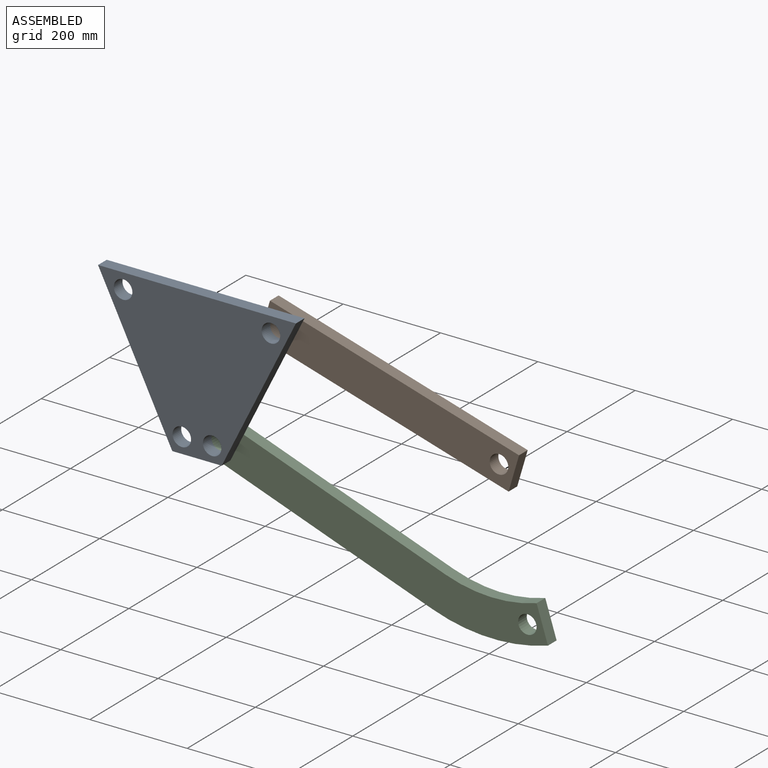
[diagram: assembled view]
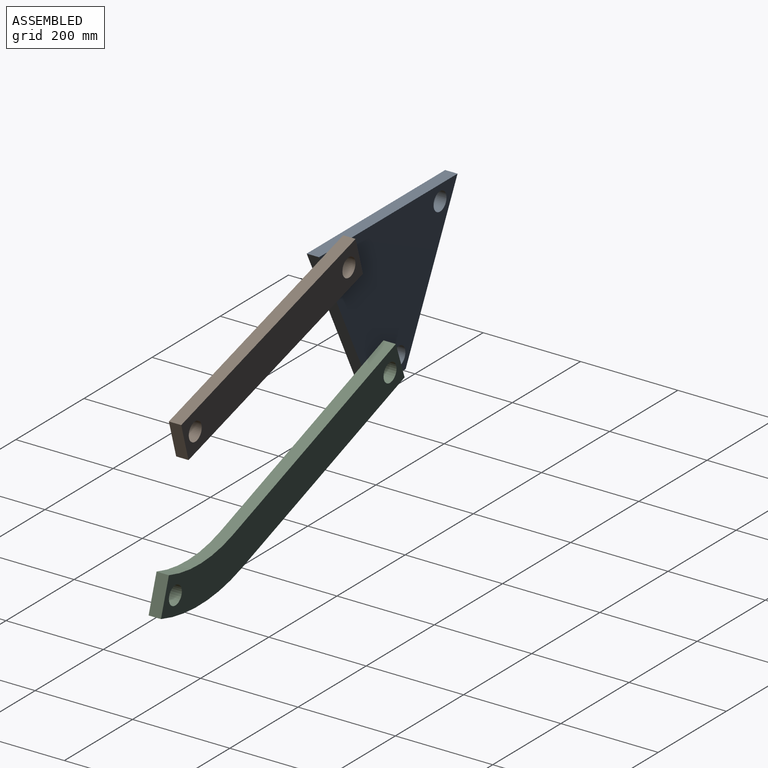
[diagram: assembled view, second angle]
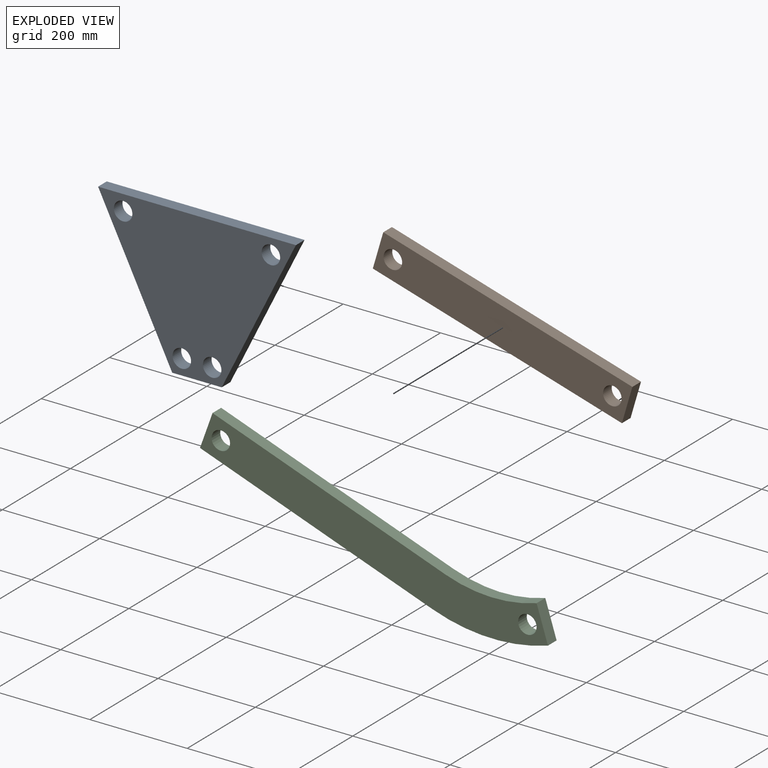
[diagram: exploded view]
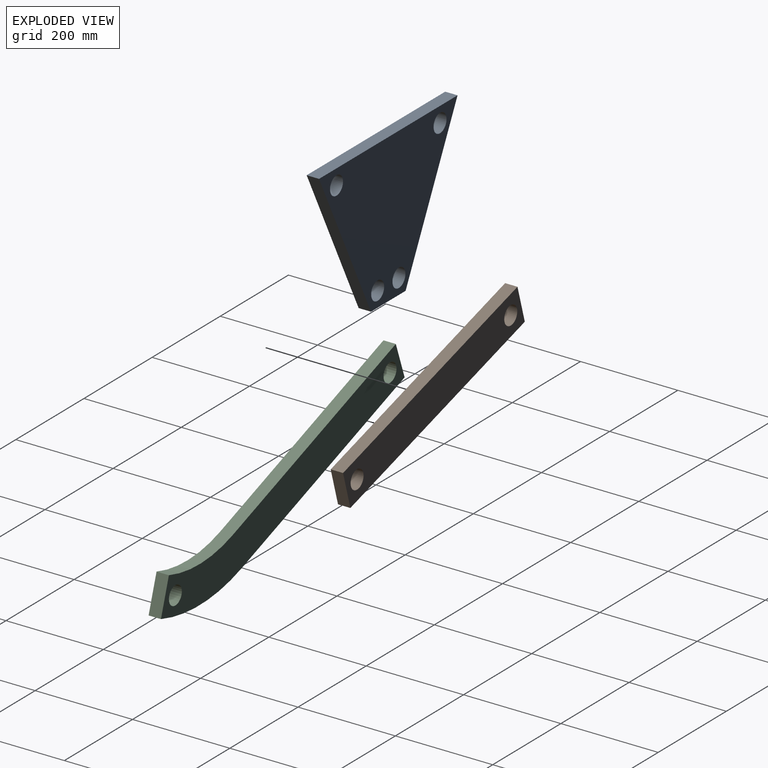
[diagram: exploded view, second angle]
ASSEMBLY  parts=3 mates=2
PART A: 10 faces, bbox 406.4x25.4x304.8 mm
  f0: plane 406.4x25.4mm, normal (0,0,1), area 10322.6mm2, adj f1,f3,f4,f5
  f1: plane 304.8x152.4mm, normal (-0.89,0,-0.45), area 8655.7mm2, adj f0,f2,f4,f5
  f2: plane 101.6x25.4mm, normal (0,0,-1), area 2580.6mm2, adj f1,f3,f4,f5
  f3: plane 304.8x152.4mm, normal (0.89,0,-0.45), area 8655.7mm2, adj f0,f2,f4,f5
  f4: plane 406.4x304.8mm, normal (0,1,0), area 72858.8mm2, adj f0,f1,f2,f3,f6,f7,f8,f9
  f5: plane 406.4x304.8mm, normal (0,-1,0), area 72858.8mm2, adj f0,f1,f2,f3,f6,f7,f8,f9
  f6: cylinder r=19.05mm len=38.1mm, axis (0,1,0), area 3040.2mm2, adj f4,f5
  f7: cylinder r=19.05mm len=38.1mm, axis (0,1,0), area 3040.2mm2, adj f4,f5
  f8: cylinder r=19.05mm len=38.1mm, axis (0,1,0), area 3040.2mm2, adj f4,f5
  f9: cylinder r=19.05mm len=38.1mm, axis (0,1,0), area 3040.2mm2, adj f4,f5
PART B: 8 faces, bbox 533.4x25.4x76.2 mm
  f0: plane 533.4x25.4mm, normal (0,0,1), area 13548.4mm2, adj f1,f3,f4,f5
  f1: plane 76.2x25.4mm, normal (-1,0,0), area 1935.5mm2, adj f0,f2,f4,f5
  f2: plane 533.4x25.4mm, normal (0,0,-1), area 13548.4mm2, adj f1,f3,f4,f5
  f3: plane 76.2x25.4mm, normal (1,0,0), area 1935.5mm2, adj f0,f2,f4,f5
  f4: plane 533.4x76.2mm, normal (0,1,0), area 38364.9mm2, adj f0,f1,f2,f3,f6,f7
  f5: plane 533.4x76.2mm, normal (0,-1,0), area 38364.9mm2, adj f0,f1,f2,f3,f6,f7
  f6: cylinder r=19.05mm len=38.1mm, axis (0,-1,0), area 3040.2mm2, adj f4,f5
  f7: cylinder r=19.05mm len=38.1mm, axis (0,-1,0), area 3040.2mm2, adj f4,f5
PART C: 10 faces, bbox 732.2x25.4x136.6 mm
  f0: plane 76.2x25.4mm, normal (-1,0,0), area 1935.5mm2, adj f1,f5,f6,f7
  f1: plane 508x25.4mm, normal (0,0,-1), area 12903.2mm2, adj f0,f2,f6,f7
  f2: cylinder r=368.01mm len=224.23mm, axis (0,-1,0), area 6124.2mm2, adj f1,f3,f6,f7
  f3: plane 60.42x46.43mm, normal (0.79,0,0.61), area 1935.5mm2, adj f2,f4,f6,f7
  f4: cylinder r=291.81mm len=177.8mm, axis (0,-1,0), area 4856.2mm2, adj f3,f5,f6,f7
  f5: plane 508x25.4mm, normal (0,0,1), area 12903.2mm2, adj f0,f4,f6,f7
  f6: plane 732.23x136.62mm, normal (0,1,0), area 52900mm2, adj f0,f1,f2,f3,f4,f5,f8,f9
  f7: plane 732.23x136.62mm, normal (0,-1,0), area 52900mm2, adj f0,f1,f2,f3,f4,f5,f8,f9
  f8: cylinder r=19.05mm len=38.1mm, axis (0,-1,0), area 3040.2mm2, adj f6,f7
  f9: cylinder r=19.05mm len=38.1mm, axis (0,-1,0), area 3040.2mm2, adj f6,f7
PLACE A at identity
PLACE B rot(axis=(0,1,0),16.4deg) t=(132.1,25.4,13.75)mm
PLACE C rot(axis=(0,1,0),19.8deg) t=(14.18,25.4,-226.46)mm
MATE revolute C.f9 <-> A.f7  axis (0,-1,0) through (31.18,25.4,-273.05)mm
MATE revolute B.f7 <-> A.f8  axis (0,-1,0) through (151.83,25.4,-31.75)mm
